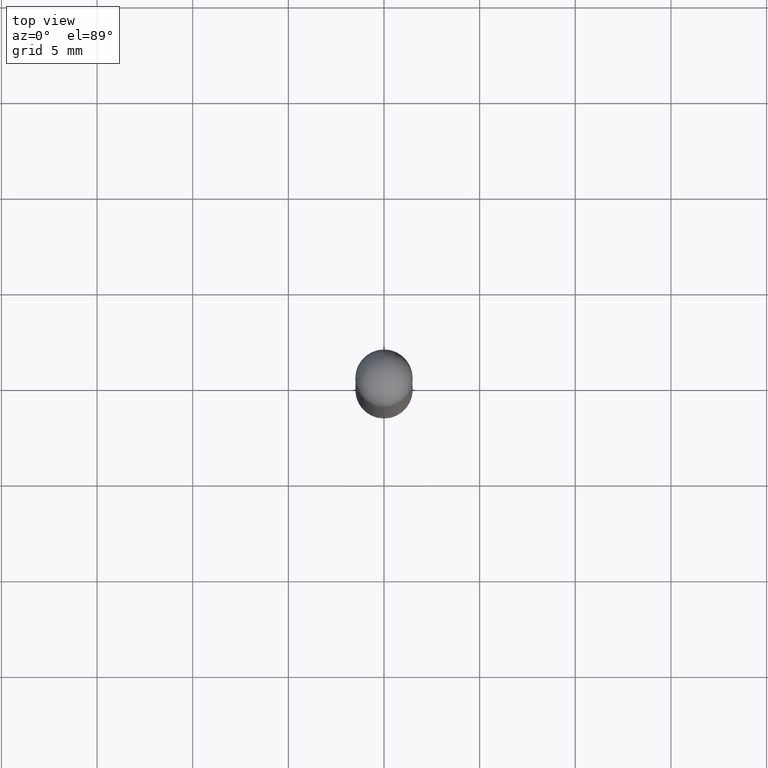
[diagram: clean part render]
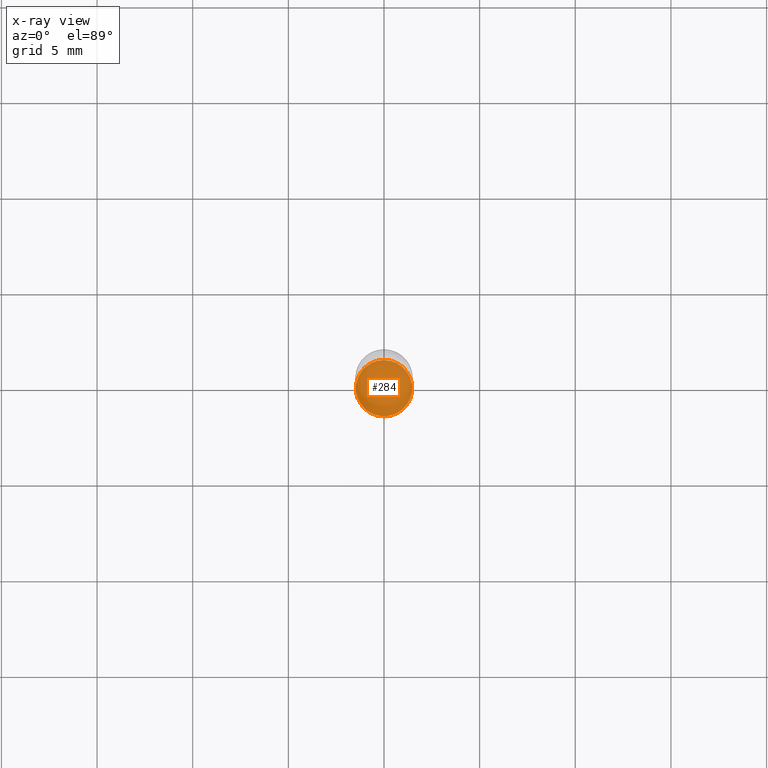
[diagram: x-ray — body ghosted, one internal face saturated and labeled with its STEP entity id]
A machine part, top view, then the same camera in x-ray: the body is ghosted and one INTERNAL B-rep face — a face not visible from any outside direction — is saturated and labeled: STEP entity #284.
In plain terms, the highlighted planar face has unit normal (-0, 0, 1).
Its self-contained STEP definition (entity closure, byte-faithful):
#4 = VERTEX_POINT ( 'NONE', #732 ) ;
#31 = EDGE_CURVE ( 'NONE', #4, #399, #816, .T. ) ;
#45 = ORIENTED_EDGE ( 'NONE', *, *, #635, .F. ) ;
#98 = DIRECTION ( 'NONE',  ( -2.453200728545479621E-29, 3.480408785949443313E-15, 1.000000000000000000 ) ) ;
#106 = DIRECTION ( 'NONE',  ( -6.982962677686265922E-15, -1.000000000000000000, 4.706025828879006993E-15 ) ) ;
#139 = EDGE_LOOP ( 'NONE', ( #800, #45 ) ) ;
#266 = DIRECTION ( 'NONE',  ( -2.453200728545479621E-29, 3.480408785949443313E-15, 1.000000000000000000 ) ) ;
#284 = ADVANCED_FACE ( 'NONE', ( #320 ), #389, .F. ) ;
#319 = CARTESIAN_POINT ( 'NONE',  ( 3.090787597894449252E-29, -4.384967029417703584E-15, -1.259899999999999798 ) ) ;
#320 = FACE_OUTER_BOUND ( 'NONE', #139, .T. ) ;
#331 = DIRECTION ( 'NONE',  ( -2.453200728545479340E-29, 3.480408785949443313E-15, 1.000000000000000000 ) ) ;
#389 = PLANE ( 'NONE',  #416 ) ;
#399 = VERTEX_POINT ( 'NONE', #801 ) ;
#416 = AXIS2_PLACEMENT_3D ( 'NONE', #775, #331, #779 ) ;
#484 = CIRCLE ( 'NONE', #719, 0.05804999999999999744 ) ;
#635 = EDGE_CURVE ( 'NONE', #399, #4, #484, .T. ) ;
#717 = AXIS2_PLACEMENT_3D ( 'NONE', #790, #98, #106 ) ;
#719 = AXIS2_PLACEMENT_3D ( 'NONE', #319, #266, #765 ) ;
#732 = CARTESIAN_POINT ( 'NONE',  ( -4.053609834396567598E-16, -0.05805000000000438282, -1.259899999999999576 ) ) ;
#765 = DIRECTION ( 'NONE',  ( -6.982962677686265922E-15, -1.000000000000000000, 4.706025828879006993E-15 ) ) ;
#775 = CARTESIAN_POINT ( 'NONE',  ( 3.090787597894449252E-29, -4.384967029417703584E-15, -1.259899999999999798 ) ) ;
#779 = DIRECTION ( 'NONE',  ( -6.982962677686265922E-15, -1.000000000000000000, 3.480408785949443313E-15 ) ) ;
#790 = CARTESIAN_POINT ( 'NONE',  ( 3.090787597894449252E-29, -4.384967029417703584E-15, -1.259899999999999798 ) ) ;
#800 = ORIENTED_EDGE ( 'NONE', *, *, #31, .F. ) ;
#801 = CARTESIAN_POINT ( 'NONE',  ( 4.160227717875699517E-16, 0.05804999999999560512, -1.259900000000000020 ) ) ;
#816 = CIRCLE ( 'NONE', #717, 0.05804999999999999744 ) ;